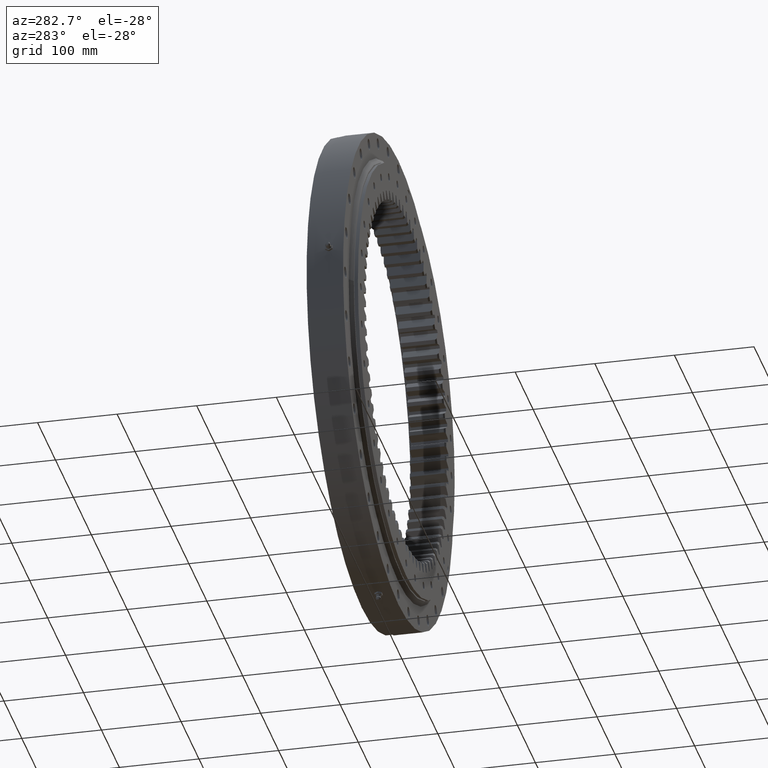
[diagram: clean part render]
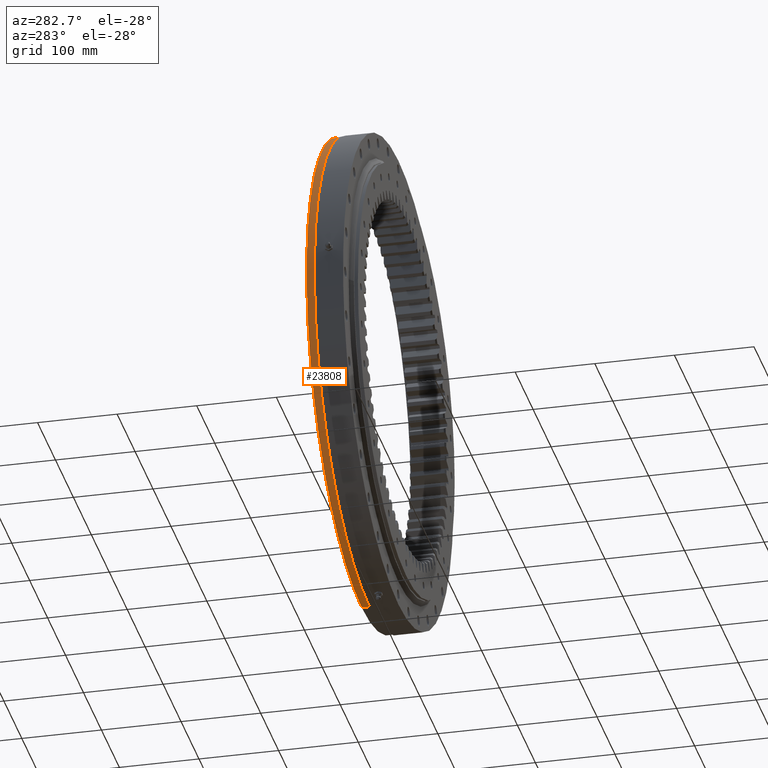
[diagram: same view with one face highlighted and labeled with its STEP entity id]
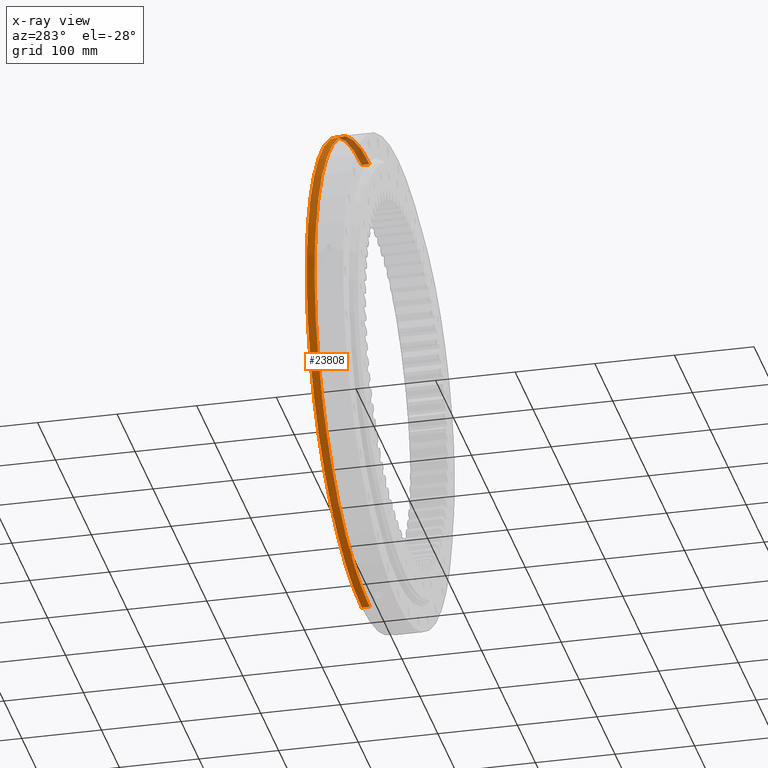
[diagram: x-ray of the same camera — body ghosted, the highlighted face saturated]
A machine part, auxiliary view. The second image highlights one B-rep face of the part: STEP entity #23808.
The next image is the same camera in x-ray: the body ghosted, the highlighted face saturated — about 5% of this face is hidden behind the body in this view.
In plain terms, the highlighted cylindrical surface (partial cylindrical patch) has radius 307 mm, axis along (0, -1, -0).
Its self-contained STEP definition (entity closure, byte-faithful):
#410 = VERTEX_POINT ( 'NONE', #25400 ) ;
#420 = AXIS2_PLACEMENT_3D ( 'NONE', #5793, #9219, #8834 ) ;
#1399 = EDGE_CURVE ( 'NONE', #410, #1835, #19295, .T. ) ;
#1740 = VERTEX_POINT ( 'NONE', #15324 ) ;
#1835 = VERTEX_POINT ( 'NONE', #23281 ) ;
#2039 = CARTESIAN_POINT ( 'NONE',  ( 7.172411751150241800E-015, -61.10955710955709500, -8.647884843640776400E-015 ) ) ;
#2549 = AXIS2_PLACEMENT_3D ( 'NONE', #2039, #13806, #5956 ) ;
#4070 = ORIENTED_EDGE ( 'NONE', *, *, #10912, .F. ) ;
#5670 = DIRECTION ( 'NONE',  ( 5.551115123125783900E-017, -9.040904109325379300E-017, 1.000000000000000000 ) ) ;
#5734 = CARTESIAN_POINT ( 'NONE',  ( -2.112655002379552800E-015, 18.00000000000005700, -1.668182511326673100E-015 ) ) ;
#5757 = DIRECTION ( 'NONE',  ( 1.173697223544192200E-016, -1.000000000000000000, -8.822830751849692900E-017 ) ) ;
#5793 = CARTESIAN_POINT ( 'NONE',  ( -3.286352225923742900E-015, 28.00000000000003900, -7.858994361417049900E-016 ) ) ;
#5956 = DIRECTION ( 'NONE',  ( 5.551115123125783900E-017, -9.040904109325379300E-017, 1.000000000000000000 ) ) ;
#6247 = CYLINDRICAL_SURFACE ( 'NONE', #2549, 307.0000000000000000 ) ;
#6844 = LINE ( 'NONE', #6998, #22373 ) ;
#6940 = DIRECTION ( 'NONE',  ( 1.173697223544192200E-016, -1.000000000000000000, -8.822830751849692900E-017 ) ) ;
#6998 = CARTESIAN_POINT ( 'NONE',  ( -4.746616841066966000E-014, -61.10955710955706600, -307.0000000000000000 ) ) ;
#8392 = CARTESIAN_POINT ( 'NONE',  ( 2.421433517914639600E-014, -61.10955710955712300, 307.0000000000000000 ) ) ;
#8834 = DIRECTION ( 'NONE',  ( 5.551115123125782700E-017, -3.390339040997017400E-017, 1.000000000000000000 ) ) ;
#9150 = ORIENTED_EDGE ( 'NONE', *, *, #20575, .F. ) ;
#9219 = DIRECTION ( 'NONE',  ( -1.173697223544192200E-016, 1.000000000000000000, 3.494217355385783800E-017 ) ) ;
#10912 = EDGE_CURVE ( 'NONE', #12918, #1740, #21981, .T. ) ;
#12323 = FACE_OUTER_BOUND ( 'NONE', #19548, .T. ) ;
#12918 = VERTEX_POINT ( 'NONE', #14763 ) ;
#13806 = DIRECTION ( 'NONE',  ( 1.173697223544192200E-016, -1.000000000000000000, -8.822830751849692900E-017 ) ) ;
#14054 = AXIS2_PLACEMENT_3D ( 'NONE', #5734, #5757, #5670 ) ;
#14763 = CARTESIAN_POINT ( 'NONE',  ( 1.492926842561660600E-014, 18.00000000000002800, 307.0000000000000000 ) ) ;
#15324 = CARTESIAN_POINT ( 'NONE',  ( -5.733808377597155800E-014, 18.00000000000008500, -307.0000000000000000 ) ) ;
#16600 = EDGE_CURVE ( 'NONE', #410, #1740, #6844, .T. ) ;
#18815 = DIRECTION ( 'NONE',  ( 1.173697223544192200E-016, -1.000000000000000000, -8.822830751849692900E-017 ) ) ;
#19295 = CIRCLE ( 'NONE', #420, 307.0000000000000000 ) ;
#19548 = EDGE_LOOP ( 'NONE', ( #22620, #22243, #4070, #9150 ) ) ;
#20575 = EDGE_CURVE ( 'NONE', #1835, #12918, #25965, .T. ) ;
#20662 = VECTOR ( 'NONE', #18815, 1000.000000000000000 ) ;
#21981 = CIRCLE ( 'NONE', #14054, 307.0000000000000000 ) ;
#22243 = ORIENTED_EDGE ( 'NONE', *, *, #16600, .T. ) ;
#22373 = VECTOR ( 'NONE', #6940, 1000.000000000000000 ) ;
#22620 = ORIENTED_EDGE ( 'NONE', *, *, #1399, .F. ) ;
#23281 = CARTESIAN_POINT ( 'NONE',  ( 1.375557120207241000E-014, 28.00000000000002800, 307.0000000000000000 ) ) ;
#23808 = ADVANCED_FACE ( 'NONE', ( #12323 ), #6247, .T. ) ;
#25400 = CARTESIAN_POINT ( 'NONE',  ( -5.733808377597155800E-014, 28.00000000000005000, -307.0000000000000000 ) ) ;
#25965 = LINE ( 'NONE', #8392, #20662 ) ;